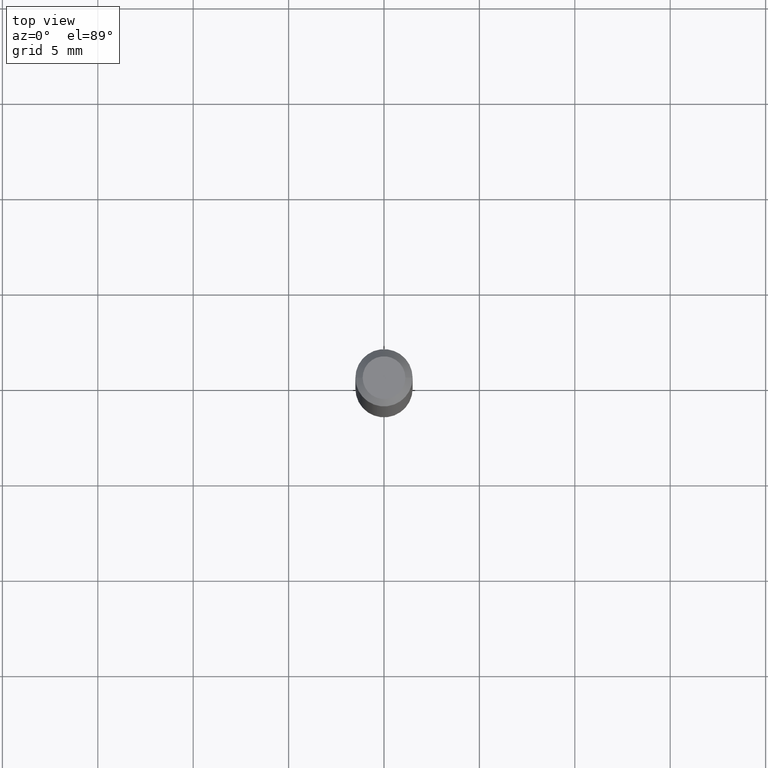
[diagram: clean part render]
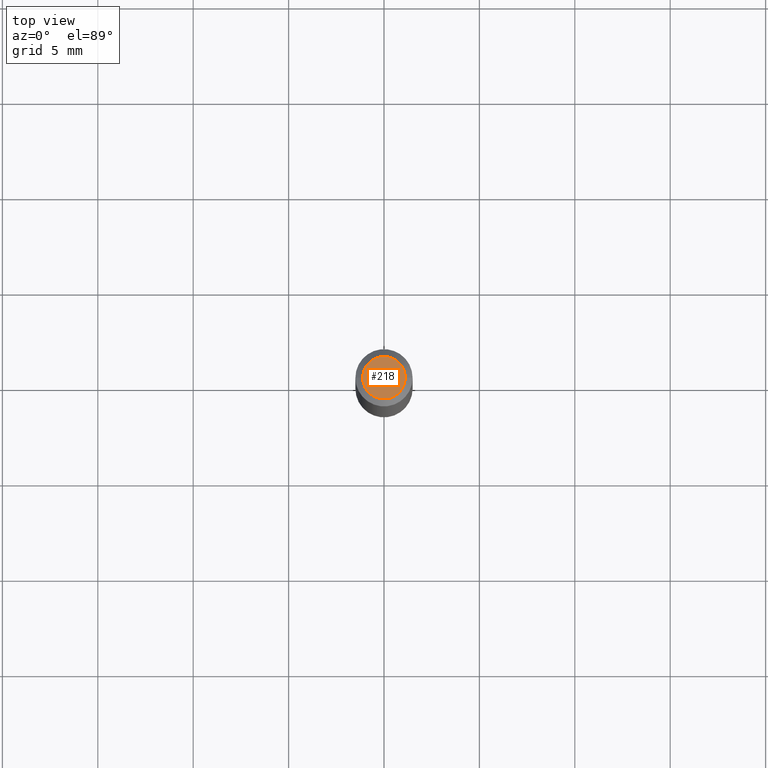
[diagram: same view with one face highlighted and labeled with its STEP entity id]
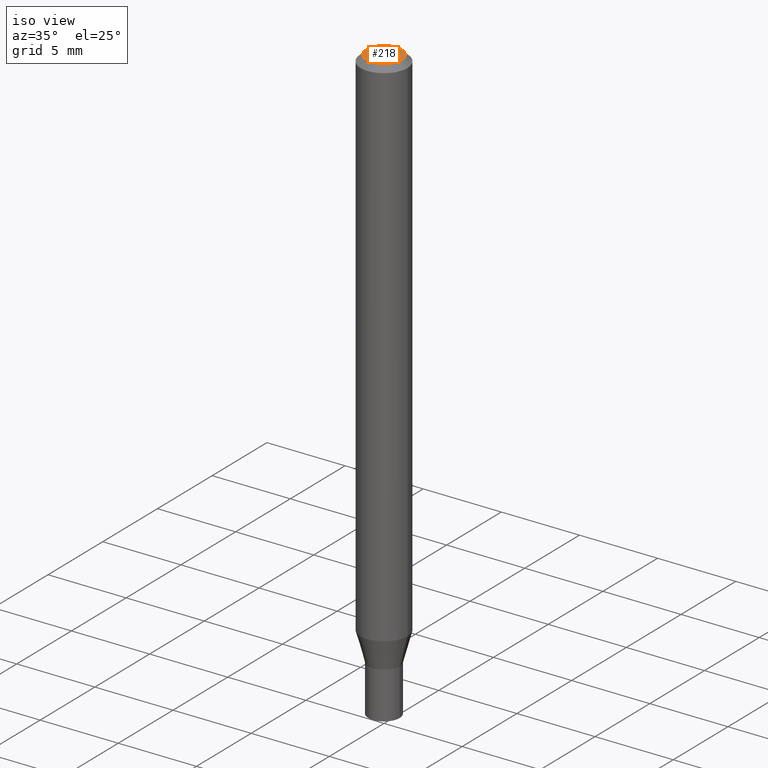
[diagram: same view with one face highlighted and labeled with its STEP entity id]
A machine part, top view. The second image highlights one B-rep face of the part: STEP entity #218.
A second angle (iso view) of the same face is appended — the face is thin or edge-on in the first view.
In plain terms, the highlighted planar face has unit normal (0, -0, -1).
Its self-contained STEP definition (entity closure, byte-faithful):
#16 = VERTEX_POINT ( 'NONE', #236 ) ;
#63 = DIRECTION ( 'NONE',  ( 1.000000000000000000, -6.982962677686265922E-15, 4.819687581474398999E-29 ) ) ;
#101 = AXIS2_PLACEMENT_3D ( 'NONE', #247, #464, #175 ) ;
#104 = CARTESIAN_POINT ( 'NONE',  ( -8.641182519006283330E-45, 1.233731848647590289E-30, 3.533548453838708869E-16 ) ) ;
#132 = DIRECTION ( 'NONE',  ( -1.000000000000000000, 6.982962677686265922E-15, -4.876176775795935793E-29 ) ) ;
#137 = CARTESIAN_POINT ( 'NONE',  ( 3.075995059520799729E-16, 0.04404999999999999888, 2.287766971589489619E-17 ) ) ;
#175 = DIRECTION ( 'NONE',  ( 1.000000000000000000, -6.982962677686265922E-15, 4.819687581474398999E-29 ) ) ;
#177 = DIRECTION ( 'NONE',  ( 2.438088387897960049E-29, -3.491481338843145188E-15, -1.000000000000000000 ) ) ;
#180 = EDGE_CURVE ( 'NONE', #16, #340, #327, .T. ) ;
#218 = ADVANCED_FACE ( 'NONE', ( #245 ), #246, .F. ) ;
#221 = AXIS2_PLACEMENT_3D ( 'NONE', #104, #400, #63 ) ;
#236 = CARTESIAN_POINT ( 'NONE',  ( -0.04404999999999999888, 3.337856159934040055E-16, 3.533548453838686682E-16 ) ) ;
#240 = CARTESIAN_POINT ( 'NONE',  ( 0.04404999999999999888, -3.798447818264454163E-16, 3.533548453838733521E-16 ) ) ;
#245 = FACE_OUTER_BOUND ( 'NONE', #366, .T. ) ;
#246 = PLANE ( 'NONE',  #275 ) ;
#247 = CARTESIAN_POINT ( 'NONE',  ( -8.641182519006283330E-45, 1.233731848647590289E-30, 3.533548453838708869E-16 ) ) ;
#264 = EDGE_CURVE ( 'NONE', #340, #16, #337, .T. ) ;
#275 = AXIS2_PLACEMENT_3D ( 'NONE', #137, #177, #132 ) ;
#327 = CIRCLE ( 'NONE', #101, 0.04404999999999999888 ) ;
#335 = ORIENTED_EDGE ( 'NONE', *, *, #264, .T. ) ;
#337 = CIRCLE ( 'NONE', #221, 0.04404999999999999888 ) ;
#340 = VERTEX_POINT ( 'NONE', #240 ) ;
#364 = ORIENTED_EDGE ( 'NONE', *, *, #180, .T. ) ;
#366 = EDGE_LOOP ( 'NONE', ( #364, #335 ) ) ;
#400 = DIRECTION ( 'NONE',  ( -2.445468806185136597E-29, 3.491481338843145583E-15, 1.000000000000000000 ) ) ;
#464 = DIRECTION ( 'NONE',  ( -2.445468806185136597E-29, 3.491481338843145583E-15, 1.000000000000000000 ) ) ;